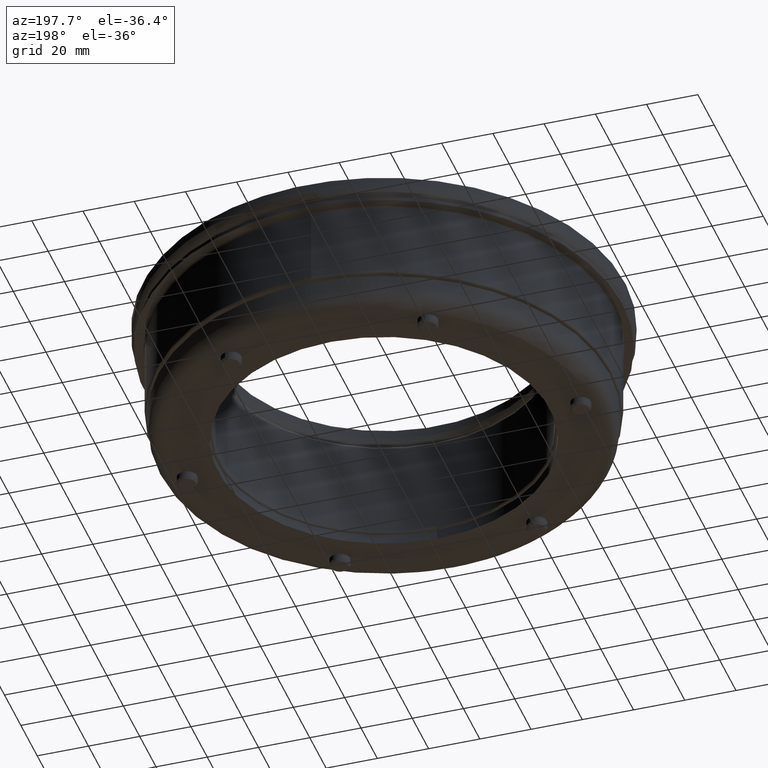
[diagram: clean part render]
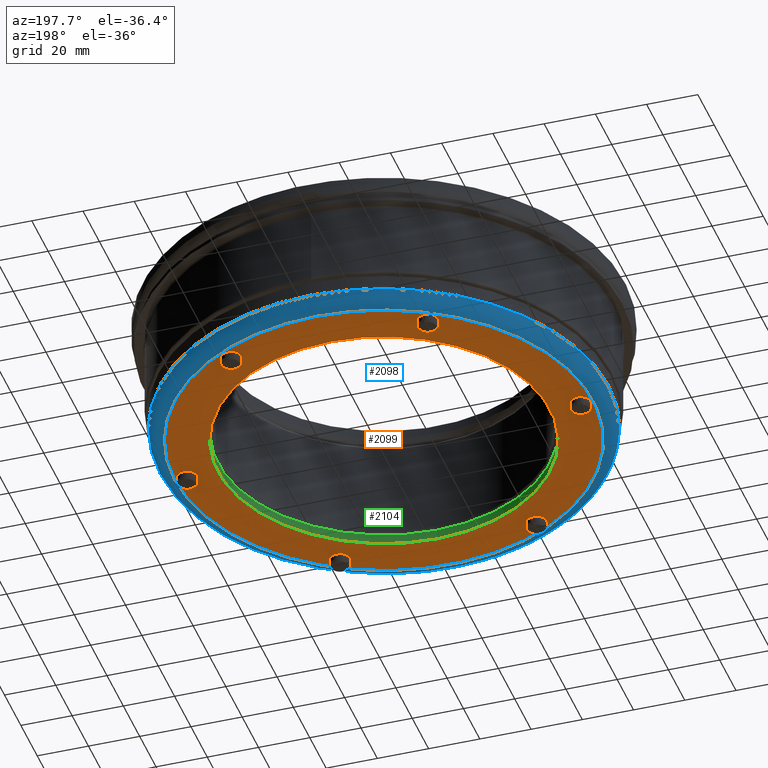
[diagram: same view with three faces highlighted in distinct colors, each labeled with its STEP entity id]
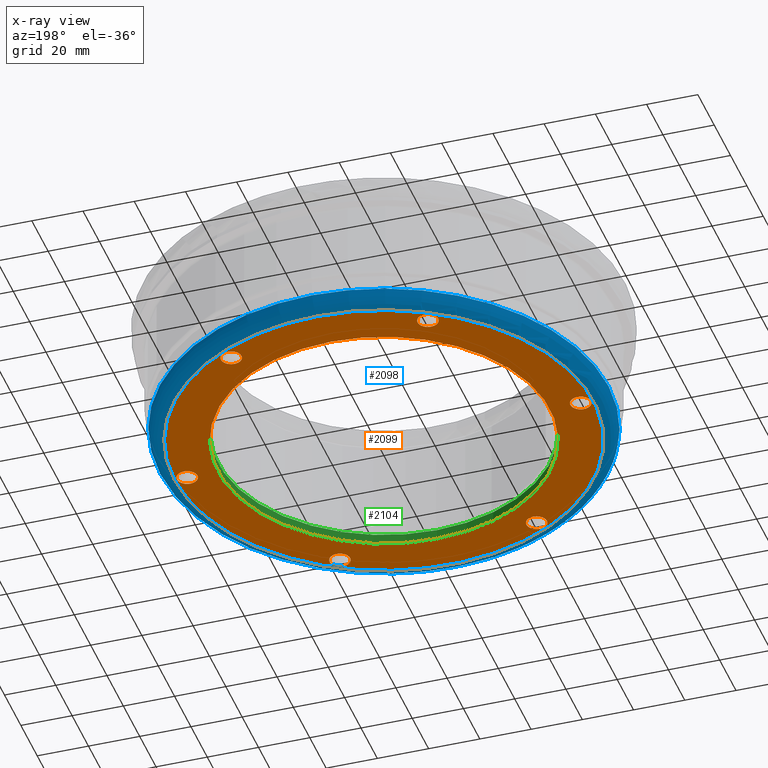
[diagram: x-ray of the same camera — body ghosted, the three highlighted faces saturated]
A machine part, auxiliary view with three faces highlighted in distinct colors.
The next image is the same camera in x-ray (body ghosted, the three faces saturated) — at least one of them is partly hidden behind the body in this view.
Their STEP definitions:

[orange] entity #2099 — the highlighted planar face has unit normal (-0, 0, -1).
#125=FACE_BOUND('',#482,.T.);
#126=FACE_BOUND('',#483,.T.);
#127=FACE_BOUND('',#484,.T.);
#128=FACE_BOUND('',#485,.T.);
#129=FACE_BOUND('',#486,.T.);
#130=FACE_BOUND('',#487,.T.);
#131=FACE_BOUND('',#488,.T.);
#156=PLANE('',#2510);
#321=FACE_OUTER_BOUND('',#481,.T.);
#481=EDGE_LOOP('',(#1871,#1872));
#482=EDGE_LOOP('',(#1873));
#483=EDGE_LOOP('',(#1874));
#484=EDGE_LOOP('',(#1875));
#485=EDGE_LOOP('',(#1876));
#486=EDGE_LOOP('',(#1877));
#487=EDGE_LOOP('',(#1878));
#488=EDGE_LOOP('',(#1879));
#848=CIRCLE('',#2487,4.);
#850=CIRCLE('',#2490,4.);
#852=CIRCLE('',#2493,4.);
#854=CIRCLE('',#2496,4.);
#856=CIRCLE('',#2499,4.);
#858=CIRCLE('',#2502,4.);
#861=CIRCLE('',#2506,81.6656606519652);
#862=CIRCLE('',#2507,81.6656606519652);
#865=CIRCLE('',#2511,64.8);
#1048=VERTEX_POINT('',#3787);
#1050=VERTEX_POINT('',#3793);
#1052=VERTEX_POINT('',#3799);
#1054=VERTEX_POINT('',#3805);
#1056=VERTEX_POINT('',#3811);
#1058=VERTEX_POINT('',#3817);
#1061=VERTEX_POINT('',#3824);
#1062=VERTEX_POINT('',#3826);
#1064=VERTEX_POINT('',#3833);
#1325=EDGE_CURVE('',#1048,#1048,#848,.T.);
#1328=EDGE_CURVE('',#1050,#1050,#850,.T.);
#1331=EDGE_CURVE('',#1052,#1052,#852,.T.);
#1334=EDGE_CURVE('',#1054,#1054,#854,.T.);
#1337=EDGE_CURVE('',#1056,#1056,#856,.T.);
#1340=EDGE_CURVE('',#1058,#1058,#858,.T.);
#1343=EDGE_CURVE('',#1061,#1062,#861,.T.);
#1344=EDGE_CURVE('',#1062,#1061,#862,.T.);
#1347=EDGE_CURVE('',#1064,#1064,#865,.F.);
#1871=ORIENTED_EDGE('',*,*,#1344,.F.);
#1872=ORIENTED_EDGE('',*,*,#1343,.F.);
#1873=ORIENTED_EDGE('',*,*,#1325,.T.);
#1874=ORIENTED_EDGE('',*,*,#1328,.T.);
#1875=ORIENTED_EDGE('',*,*,#1331,.T.);
#1876=ORIENTED_EDGE('',*,*,#1334,.T.);
#1877=ORIENTED_EDGE('',*,*,#1337,.T.);
#1878=ORIENTED_EDGE('',*,*,#1340,.T.);
#1879=ORIENTED_EDGE('',*,*,#1347,.T.);
#2099=ADVANCED_FACE('',(#321,#125,#126,#127,#128,#129,#130,#131),#156,.T.);
#2487=AXIS2_PLACEMENT_3D('',#3789,#3134,#3135);
#2490=AXIS2_PLACEMENT_3D('',#3795,#3141,#3142);
#2493=AXIS2_PLACEMENT_3D('',#3801,#3148,#3149);
#2496=AXIS2_PLACEMENT_3D('',#3807,#3155,#3156);
#2499=AXIS2_PLACEMENT_3D('',#3813,#3162,#3163);
#2502=AXIS2_PLACEMENT_3D('',#3819,#3169,#3170);
#2506=AXIS2_PLACEMENT_3D('',#3827,#3177,#3178);
#2507=AXIS2_PLACEMENT_3D('',#3828,#3179,#3180);
#2510=AXIS2_PLACEMENT_3D('',#3832,#3185,#3186);
#2511=AXIS2_PLACEMENT_3D('',#3834,#3187,#3188);
#3134=DIRECTION('center_axis',(-2.61252328760627E-16,1.,0.));
#3135=DIRECTION('ref_axis',(-0.499999999999999,-3.18662658050376E-16,-0.866025403784439));
#3141=DIRECTION('center_axis',(-2.61252328760627E-16,1.,0.));
#3142=DIRECTION('ref_axis',(0.500000000000001,-6.7809554451003E-17,-0.866025403784438));
#3148=DIRECTION('center_axis',(-2.61252328760627E-16,1.,0.));
#3149=DIRECTION('ref_axis',(1.,5.76169973486834E-17,1.38777878078145E-16));
#3155=DIRECTION('center_axis',(-2.61252328760627E-16,1.,0.));
#3156=DIRECTION('ref_axis',(0.5,-6.78095544510031E-17,0.866025403784439));
#3162=DIRECTION('center_axis',(-2.61252328760627E-16,1.,0.));
#3163=DIRECTION('ref_axis',(-0.5,-3.18662658050376E-16,0.866025403784439));
#3169=DIRECTION('center_axis',(-2.61252328760627E-16,1.,0.));
#3170=DIRECTION('ref_axis',(-1.,-4.44089209850063E-16,0.));
#3177=DIRECTION('center_axis',(-2.61252328760627E-16,1.,0.));
#3178=DIRECTION('ref_axis',(1.,2.61252328760627E-16,1.22464679914735E-16));
#3179=DIRECTION('center_axis',(-2.61252328760627E-16,1.,0.));
#3180=DIRECTION('ref_axis',(1.,2.61252328760627E-16,1.22464679914735E-16));
#3185=DIRECTION('center_axis',(2.61252328760627E-16,-1.,0.));
#3186=DIRECTION('ref_axis',(0.,0.,-1.));
#3187=DIRECTION('center_axis',(2.61252328760627E-16,-1.,0.));
#3188=DIRECTION('ref_axis',(-1.,-2.50853103599373E-16,0.));
#3787=CARTESIAN_POINT('',(-35.960751010645,-3.99999999999999,41.8641016151377));
#3789=CARTESIAN_POINT('Origin',(-37.9607510106449,-3.99999999999999,38.3999999999999));
#3793=CARTESIAN_POINT('',(-39.9607510106449,-4.00000000000001,-34.9358983848623));
#3795=CARTESIAN_POINT('Origin',(-37.9607510106449,-4.00000000000001,-38.4));
#3799=CARTESIAN_POINT('',(24.55,-4.,-76.8));
#3801=CARTESIAN_POINT('Origin',(28.55,-4.,-76.8));
#3805=CARTESIAN_POINT('',(93.0607510106449,-3.99999999999997,-41.8641016151377));
#3807=CARTESIAN_POINT('Origin',(95.0607510106449,-3.99999999999997,-38.4));
#3811=CARTESIAN_POINT('',(97.0607510106449,-3.99999999999995,34.9358983848623));
#3813=CARTESIAN_POINT('Origin',(95.0607510106449,-3.99999999999996,38.4));
#3817=CARTESIAN_POINT('',(32.55,-3.99999999999996,76.8));
#3819=CARTESIAN_POINT('Origin',(28.55,-3.99999999999996,76.8));
#3824=CARTESIAN_POINT('',(28.55,-3.99999999999998,-81.6656606519652));
#3826=CARTESIAN_POINT('',(-53.1156606519652,-4.,0.));
#3827=CARTESIAN_POINT('Origin',(28.55,-3.99999999999998,0.));
#3828=CARTESIAN_POINT('Origin',(28.55,-3.99999999999998,0.));
#3832=CARTESIAN_POINT('Origin',(-56.8407337370299,-4.,0.));
#3833=CARTESIAN_POINT('',(93.35,-3.99999999999996,7.93571125847485E-15));
#3834=CARTESIAN_POINT('Origin',(28.55,-3.99999999999998,0.));

[blue] entity #2098 — the highlighted toroidal blend (fillet) surface has major radius 81.6657 mm and minor (blend) radius 6 mm.
#177=TOROIDAL_SURFACE('',#2503,81.6656606519652,6.);
#320=FACE_OUTER_BOUND('',#480,.T.);
#480=EDGE_LOOP('',(#1864,#1865,#1866,#1867,#1868,#1869,#1870));
#859=CIRCLE('',#2504,87.6428288405157);
#860=CIRCLE('',#2505,6.);
#861=CIRCLE('',#2506,81.6656606519652);
#862=CIRCLE('',#2507,81.6656606519652);
#863=CIRCLE('',#2508,87.6428288405157);
#864=CIRCLE('',#2509,87.6428288405157);
#1059=VERTEX_POINT('',#3821);
#1060=VERTEX_POINT('',#3822);
#1061=VERTEX_POINT('',#3824);
#1062=VERTEX_POINT('',#3826);
#1063=VERTEX_POINT('',#3829);
#1341=EDGE_CURVE('',#1059,#1060,#859,.T.);
#1342=EDGE_CURVE('',#1060,#1061,#860,.T.);
#1343=EDGE_CURVE('',#1061,#1062,#861,.T.);
#1344=EDGE_CURVE('',#1062,#1061,#862,.T.);
#1345=EDGE_CURVE('',#1060,#1063,#863,.T.);
#1346=EDGE_CURVE('',#1063,#1059,#864,.T.);
#1864=ORIENTED_EDGE('',*,*,#1341,.T.);
#1865=ORIENTED_EDGE('',*,*,#1342,.T.);
#1866=ORIENTED_EDGE('',*,*,#1343,.T.);
#1867=ORIENTED_EDGE('',*,*,#1344,.T.);
#1868=ORIENTED_EDGE('',*,*,#1342,.F.);
#1869=ORIENTED_EDGE('',*,*,#1345,.T.);
#1870=ORIENTED_EDGE('',*,*,#1346,.T.);
#2098=ADVANCED_FACE('',(#320),#177,.T.);
#2503=AXIS2_PLACEMENT_3D('',#3820,#3171,#3172);
#2504=AXIS2_PLACEMENT_3D('',#3823,#3173,#3174);
#2505=AXIS2_PLACEMENT_3D('',#3825,#3175,#3176);
#2506=AXIS2_PLACEMENT_3D('',#3827,#3177,#3178);
#2507=AXIS2_PLACEMENT_3D('',#3828,#3179,#3180);
#2508=AXIS2_PLACEMENT_3D('',#3830,#3181,#3182);
#2509=AXIS2_PLACEMENT_3D('',#3831,#3183,#3184);
#3171=DIRECTION('center_axis',(-2.61252328760627E-16,1.,0.));
#3172=DIRECTION('ref_axis',(0.,0.,1.));
#3173=DIRECTION('center_axis',(2.69186191105442E-16,-1.,-3.16689636594635E-18));
#3174=DIRECTION('ref_axis',(1.,2.69186191105442E-16,0.));
#3175=DIRECTION('center_axis',(-1.,-2.61252328760627E-16,1.01314290349812E-16));
#3176=DIRECTION('ref_axis',(-1.01314290349812E-16,0.,-1.));
#3177=DIRECTION('center_axis',(-2.61252328760627E-16,1.,0.));
#3178=DIRECTION('ref_axis',(1.,2.61252328760627E-16,1.22464679914735E-16));
#3179=DIRECTION('center_axis',(-2.61252328760627E-16,1.,0.));
#3180=DIRECTION('ref_axis',(1.,2.61252328760627E-16,1.22464679914735E-16));
#3181=DIRECTION('center_axis',(2.69186191105442E-16,-1.,-3.16689636594635E-18));
#3182=DIRECTION('ref_axis',(1.,2.69186191105442E-16,0.));
#3183=DIRECTION('center_axis',(2.69186191105442E-16,-1.,-3.16689636594635E-18));
#3184=DIRECTION('ref_axis',(1.,2.69186191105442E-16,0.));
#3820=CARTESIAN_POINT('Origin',(28.55,2.00000000000003,0.));
#3821=CARTESIAN_POINT('',(-59.0928288405157,1.47706554351405,-2.14663019615514E-14));
#3822=CARTESIAN_POINT('',(28.55,1.47706554351408,-87.6428288405157));
#3823=CARTESIAN_POINT('Origin',(28.55,1.47706554351408,-1.07331509807757E-14));
#3824=CARTESIAN_POINT('',(28.55,-3.99999999999998,-81.6656606519652));
#3825=CARTESIAN_POINT('Origin',(28.55,2.00000000000003,-81.6656606519652));
#3826=CARTESIAN_POINT('',(-53.1156606519652,-4.,0.));
#3827=CARTESIAN_POINT('Origin',(28.55,-3.99999999999998,0.));
#3828=CARTESIAN_POINT('Origin',(28.55,-3.99999999999998,0.));
#3829=CARTESIAN_POINT('',(116.192828840516,1.4770655435141,-1.07331509807757E-14));
#3830=CARTESIAN_POINT('Origin',(28.55,1.47706554351408,-1.07331509807757E-14));
#3831=CARTESIAN_POINT('Origin',(28.55,1.47706554351408,-1.07331509807757E-14));

[green] entity #2104 — the highlighted cylindrical surface (bore or boss wall) has radius 64.8 mm, axis along (0, -0, 1).
#230=CYLINDRICAL_SURFACE('',#2523,64.8);
#326=FACE_OUTER_BOUND('',#500,.T.);
#500=EDGE_LOOP('',(#1910,#1911,#1912,#1913));
#582=LINE('',#3855,#663);
#663=VECTOR('',#3215,70.8);
#865=CIRCLE('',#2511,64.8);
#872=CIRCLE('',#2522,64.8);
#1064=VERTEX_POINT('',#3833);
#1070=VERTEX_POINT('',#3852);
#1347=EDGE_CURVE('',#1064,#1064,#865,.F.);
#1356=EDGE_CURVE('',#1070,#1070,#872,.T.);
#1357=EDGE_CURVE('',#1070,#1064,#582,.T.);
#1910=ORIENTED_EDGE('',*,*,#1356,.T.);
#1911=ORIENTED_EDGE('',*,*,#1357,.T.);
#1912=ORIENTED_EDGE('',*,*,#1347,.F.);
#1913=ORIENTED_EDGE('',*,*,#1357,.F.);
#2104=ADVANCED_FACE('',(#326),#230,.F.);
#2511=AXIS2_PLACEMENT_3D('',#3834,#3187,#3188);
#2522=AXIS2_PLACEMENT_3D('',#3853,#3211,#3212);
#2523=AXIS2_PLACEMENT_3D('',#3854,#3213,#3214);
#3187=DIRECTION('center_axis',(2.61252328760627E-16,-1.,0.));
#3188=DIRECTION('ref_axis',(-1.,-2.50853103599373E-16,0.));
#3211=DIRECTION('center_axis',(-2.61252328760627E-16,1.,0.));
#3212=DIRECTION('ref_axis',(-1.,-2.50853103599373E-16,0.));
#3213=DIRECTION('center_axis',(-2.61252328760627E-16,1.,0.));
#3214=DIRECTION('ref_axis',(-1.,-2.50853103599373E-16,0.));
#3215=DIRECTION('',(2.61252328760627E-16,-1.,0.));
#3833=CARTESIAN_POINT('',(93.35,-3.99999999999996,7.93571125847485E-15));
#3834=CARTESIAN_POINT('Origin',(28.55,-3.99999999999998,0.));
#3852=CARTESIAN_POINT('',(93.35,3.59617398003359E-14,-7.93571125847485E-15));
#3853=CARTESIAN_POINT('Origin',(28.55,1.97064586870965E-14,0.));
#3854=CARTESIAN_POINT('Origin',(28.55,-1.99999999999998,0.));
#3855=CARTESIAN_POINT('',(93.35,-1.99999999999997,-7.93571125847485E-15));